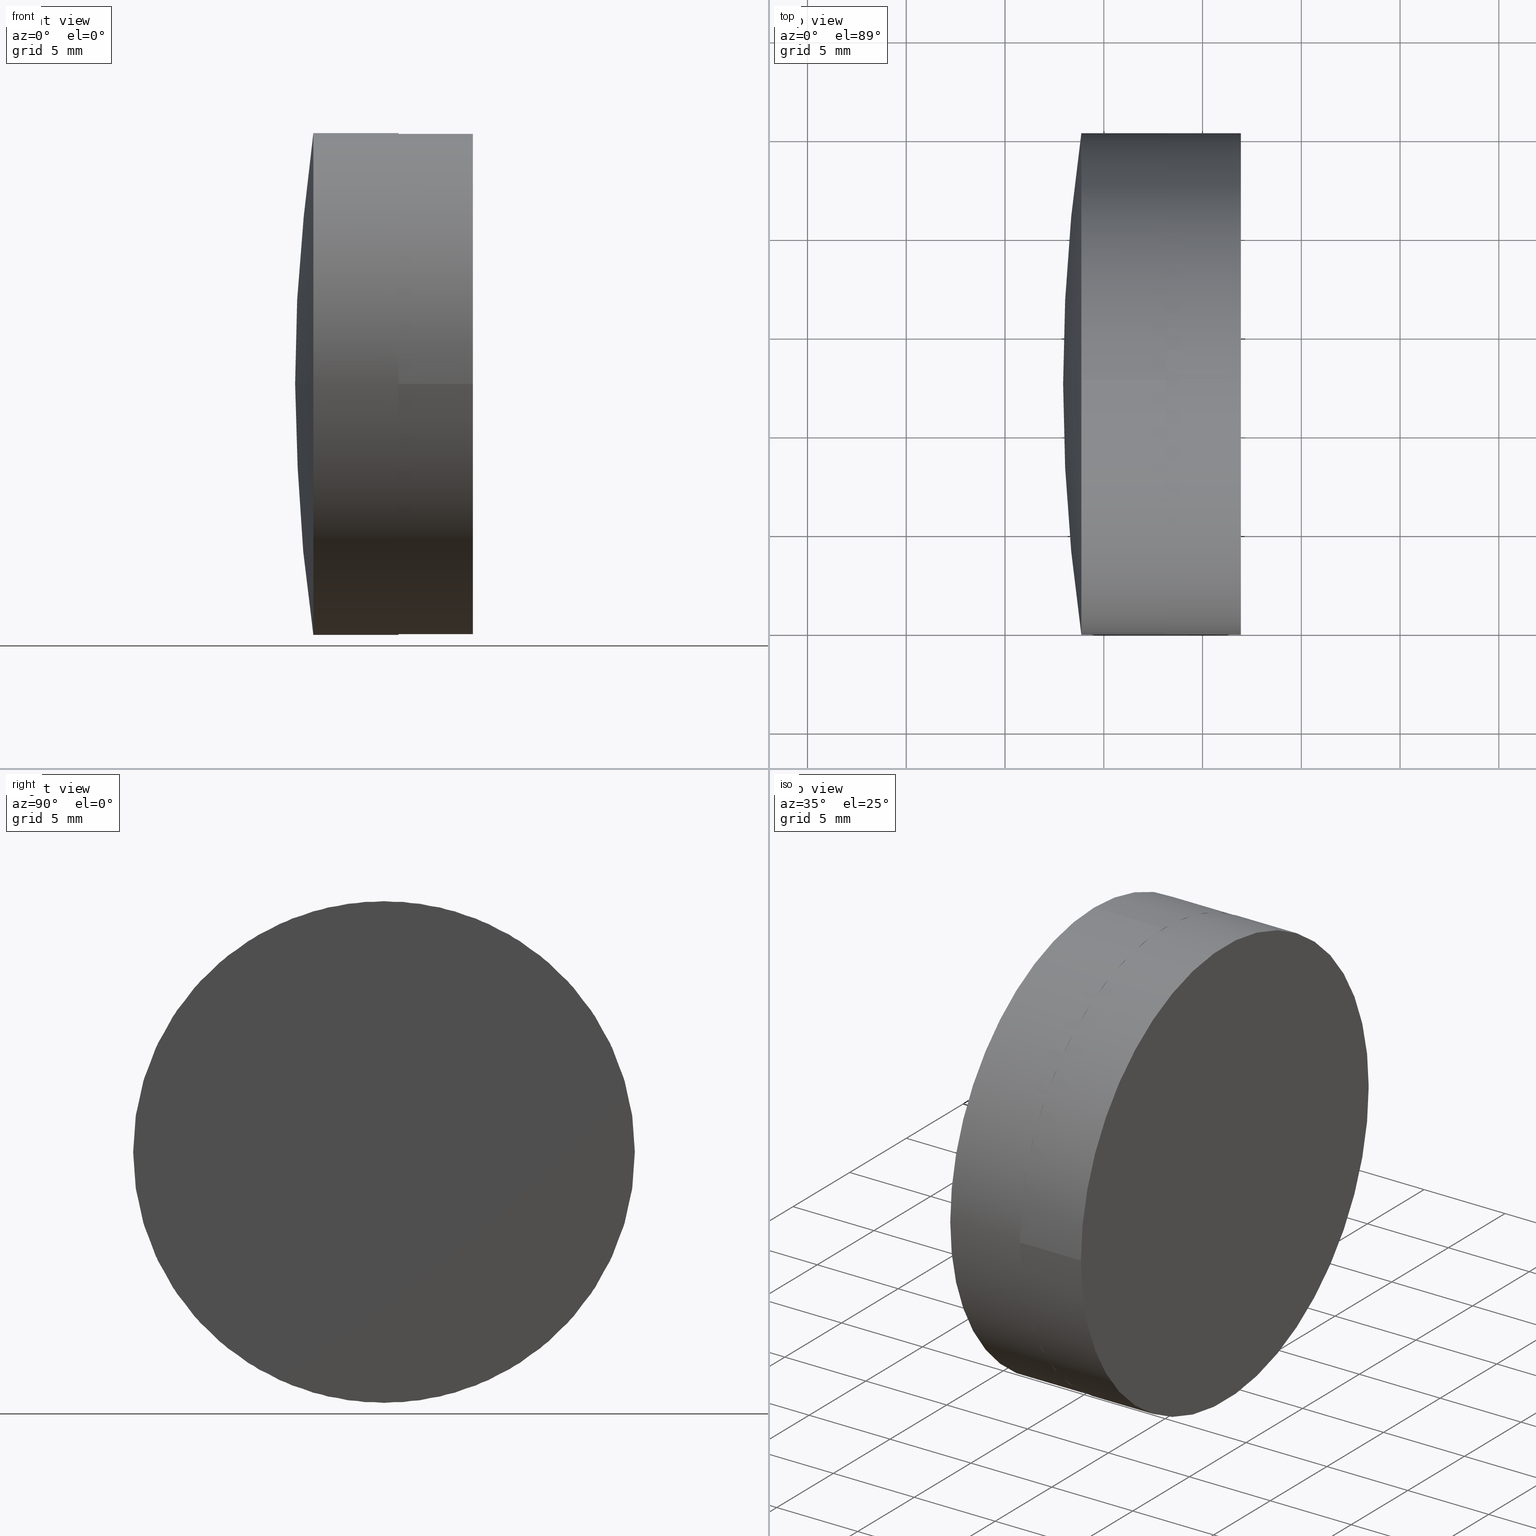
[diagram: canonical four-view strip — front | top / right | iso, engineering-drawing reading convention]
A machine part, canonical four-view strip (front | top / right | iso — engineering-drawing reading convention). The complete STEP part file that produces these views, byte-faithful:
ISO-10303-21;
HEADER;
FILE_DESCRIPTION (( 'STEP AP203' ),
    '1' );
FILE_NAME ('145279.STEP',
    '2024-05-11T09:28:15',
    ( '' ),
    ( '' ),
    'SwSTEP 2.0',
    'SolidWorks 2020',
    '' );
FILE_SCHEMA (( 'CONFIG_CONTROL_DESIGN' ));
ENDSEC;

DATA;
#1 = AXIS2_PLACEMENT_3D ( 'NONE', #187, #366, #335 ) ;
#2 = ORIENTED_EDGE ( 'NONE', *, *, #151, .T. ) ;
#3 = CARTESIAN_POINT ( 'NONE',  ( -36.13668689039688076, 32.49878037169512623, 0.000000000000000000 ) ) ;
#4 = AXIS2_PLACEMENT_3D ( 'NONE', #211, #178, #205 ) ;
#5 = ADVANCED_FACE ( 'NONE', ( #128 ), #250, .T. ) ;
#6 = EDGE_LOOP ( 'NONE', ( #7, #48, #64, #71 ) ) ;
#7 = ORIENTED_EDGE ( 'NONE', *, *, #271, .F. ) ;
#8 = DIRECTION ( 'NONE',  ( 0.000000000000000000, 1.000000000000000000, 0.000000000000000000 ) ) ;
#9 = EDGE_LOOP ( 'NONE', ( #358, #34, #210, #76 ) ) ;
#10 = VECTOR ( 'NONE', #369, 1000.000000000000000 ) ;
#11 = EDGE_LOOP ( 'NONE', ( #215, #376, #190 ) ) ;
#12 = DIRECTION ( 'NONE',  ( -1.499759782661856239E-32, 1.224646799147353207E-16, 1.000000000000000000 ) ) ;
#13 = ORIENTED_EDGE ( 'NONE', *, *, #186, .F. ) ;
#14 = LINE ( 'NONE', #303, #196 ) ;
#15 = DIRECTION ( 'NONE',  ( -1.000000000000000000, -0.000000000000000000, -0.000000000000000000 ) ) ;
#16 = DIRECTION ( 'NONE',  ( 1.000000000000000000, 1.224646799147351975E-16, -0.000000000000000000 ) ) ;
#17 = ORIENTED_EDGE ( 'NONE', *, *, #151, .F. ) ;
#18 = LOCAL_TIME ( 17, 28, 15.00000000000000000, #174 ) ;
#19 = APPROVAL_STATUS ( 'not_yet_approved' ) ;
#20 = CARTESIAN_POINT ( 'NONE',  ( -28.05941295107895428, 45.19878037169511487, 0.000000000000000000 ) ) ;
#21 = SPHERICAL_SURFACE ( 'NONE', #195, 87.85999999999999943 ) ;
#22 = DIRECTION ( 'NONE',  ( 0.000000000000000000, 0.000000000000000000, 1.000000000000000000 ) ) ;
#23 = CIRCLE ( 'NONE', #354, 12.69999999999999929 ) ;
#24 = CALENDAR_DATE ( 2024, 11, 5 ) ;
#25 = DIRECTION ( 'NONE',  ( 1.000000000000000000, 0.000000000000000000, 0.000000000000000000 ) ) ;
#26 = CARTESIAN_POINT ( 'NONE',  ( 0.000000000000000000, 0.000000000000000000, 0.000000000000000000 ) ) ;
#27 = EDGE_CURVE ( 'NONE', #126, #32, #132, .T. ) ;
#28 = CARTESIAN_POINT ( 'NONE',  ( -37.05941295107898981, 32.49878037169513334, 0.000000000000000000 ) ) ;
#29 = ORIENTED_EDGE ( 'NONE', *, *, #315, .F. ) ;
#30 = DIRECTION ( 'NONE',  ( 0.000000000000000000, 1.000000000000000000, 0.000000000000000000 ) ) ;
#31 = ADVANCED_FACE ( 'NONE', ( #161 ), #371, .T. ) ;
#32 = VERTEX_POINT ( 'NONE', #98 ) ;
#33 = DIRECTION ( 'NONE',  ( -1.000000000000000000, -0.000000000000000000, -0.000000000000000000 ) ) ;
#34 = ORIENTED_EDGE ( 'NONE', *, *, #89, .T. ) ;
#35 = AXIS2_PLACEMENT_3D ( 'NONE', #141, #231, #259 ) ;
#36 = DIRECTION ( 'NONE',  ( 0.000000000000000000, 0.000000000000000000, 1.000000000000000000 ) ) ;
#37 = VERTEX_POINT ( 'NONE', #20 ) ;
#38 = DIRECTION ( 'NONE',  ( 0.000000000000000000, 1.224646799147353207E-16, -1.000000000000000000 ) ) ;
#39 = ORIENTED_EDGE ( 'NONE', *, *, #44, .F. ) ;
#40 = ADVANCED_FACE ( 'NONE', ( #136 ), #130, .T. ) ;
#41 = FACE_OUTER_BOUND ( 'NONE', #332, .T. ) ;
#42 = AXIS2_PLACEMENT_3D ( 'NONE', #105, #227, #185 ) ;
#43 = VERTEX_POINT ( 'NONE', #275 ) ;
#44 = EDGE_CURVE ( 'NONE', #134, #212, #218, .T. ) ;
#45 = EDGE_LOOP ( 'NONE', ( #120, #241, #368, #364, #39, #96 ) ) ;
#46 = CARTESIAN_POINT ( 'NONE',  ( -28.05941295107897204, 45.19878037169512197, 0.000000000000000000 ) ) ;
#47 = PRODUCT_DEFINITION ( 'δ֪', '', #150, #308 ) ;
#48 = ORIENTED_EDGE ( 'NONE', *, *, #284, .T. ) ;
#49 = DIRECTION ( 'NONE',  ( 0.000000000000000000, -1.000000000000000000, 1.224646799147353207E-16 ) ) ;
#50 = CLOSED_SHELL ( 'NONE', ( #261, #59, #234, #125, #40, #85 ) ) ;
#51 = DIRECTION ( 'NONE',  ( -1.000000000000000000, -0.000000000000000000, -0.000000000000000000 ) ) ;
#52 = APPROVAL_PERSON_ORGANIZATION ( #111, #223, #253 ) ;
#53 = CARTESIAN_POINT ( 'NONE',  ( -31.82558590161919909, 32.49878037169512623, 12.69999999999999929 ) ) ;
#54 = CALENDAR_DATE ( 2024, 11, 5 ) ;
#55 = CARTESIAN_POINT ( 'NONE',  ( -136.6994129510789548, 32.49878037169512623, 0.000000000000000000 ) ) ;
#56 = CARTESIAN_POINT ( 'NONE',  ( -28.05941295107895428, 19.79878037169513405, 1.555301434917137841E-15 ) ) ;
#57 = AXIS2_PLACEMENT_3D ( 'NONE', #310, #15, #307 ) ;
#58 = APPROVAL_ROLE ( '' ) ;
#59 = ADVANCED_FACE ( 'NONE', ( #254 ), #377, .T. ) ;
#60 = DIRECTION ( 'NONE',  ( 1.000000000000000000, 1.224646799147351975E-16, -0.000000000000000000 ) ) ;
#61 = AXIS2_PLACEMENT_3D ( 'NONE', #372, #343, #312 ) ;
#62 = AXIS2_PLACEMENT_3D ( 'NONE', #340, #72, #68 ) ;
#63 = ADVANCED_FACE ( 'NONE', ( #74 ), #156, .F. ) ;
#64 = ORIENTED_EDGE ( 'NONE', *, *, #306, .T. ) ;
#65 = EDGE_LOOP ( 'NONE', ( #341, #92 ) ) ;
#66 = AXIS2_PLACEMENT_3D ( 'NONE', #359, #177, #363 ) ;
#67 = LOCAL_TIME ( 17, 28, 15.00000000000000000, #104 ) ;
#68 = DIRECTION ( 'NONE',  ( 0.000000000000000000, 1.000000000000000000, 0.000000000000000000 ) ) ;
#69 = ORIENTED_EDGE ( 'NONE', *, *, #208, .F. ) ;
#70 = CYLINDRICAL_SURFACE ( 'NONE', #78, 12.69999999999999929 ) ;
#71 = ORIENTED_EDGE ( 'NONE', *, *, #256, .F. ) ;
#72 = DIRECTION ( 'NONE',  ( 1.000000000000000000, 1.224646799147351975E-16, -0.000000000000000000 ) ) ;
#73 = AXIS2_PLACEMENT_3D ( 'NONE', #268, #181, #356 ) ;
#74 = FACE_OUTER_BOUND ( 'NONE', #11, .T. ) ;
#75 = ORIENTED_EDGE ( 'NONE', *, *, #179, .T. ) ;
#76 = ORIENTED_EDGE ( 'NONE', *, *, #349, .F. ) ;
#77 = APPROVAL_DATE_TIME ( #344, #223 ) ;
#78 = AXIS2_PLACEMENT_3D ( 'NONE', #99, #302, #243 ) ;
#79 = CARTESIAN_POINT ( 'NONE',  ( -37.05941295107898981, 32.49878037169512623, -12.69999999999999929 ) ) ;
#80 = SHAPE_DEFINITION_REPRESENTATION ( #224, #188 ) ;
#81 = DIRECTION ( 'NONE',  ( 0.000000000000000000, 0.000000000000000000, 1.000000000000000000 ) ) ;
#82 =( NAMED_UNIT ( * ) SI_UNIT ( $, .STERADIAN. ) SOLID_ANGLE_UNIT ( ) );
#83 = DIRECTION ( 'NONE',  ( -1.000000000000000000, -0.000000000000000000, -0.000000000000000000 ) ) ;
#84 = APPROVAL_DATE_TIME ( #316, #370 ) ;
#85 = ADVANCED_FACE ( 'NONE', ( #41 ), #199, .T. ) ;
#86 = CALENDAR_DATE ( 2024, 11, 5 ) ;
#87 = EDGE_CURVE ( 'NONE', #298, #272, #23, .T. ) ;
#88 = FACE_OUTER_BOUND ( 'NONE', #207, .T. ) ;
#89 = EDGE_CURVE ( 'NONE', #176, #103, #140, .T. ) ;
#90 = AXIS2_PLACEMENT_3D ( 'NONE', #251, #162, #8 ) ;
#91 = VERTEX_POINT ( 'NONE', #169 ) ;
#92 = ORIENTED_EDGE ( 'NONE', *, *, #256, .T. ) ;
#93 = MANIFOLD_SOLID_BREP ( '145279a-1-solid1', #50 ) ;
#94 = CIRCLE ( 'NONE', #163, 12.69999999999998863 ) ;
#95 = CARTESIAN_POINT ( 'NONE',  ( -136.6994129510789548, 32.49878037169512623, 0.000000000000000000 ) ) ;
#96 = ORIENTED_EDGE ( 'NONE', *, *, #149, .T. ) ;
#97 =( NAMED_UNIT ( * ) PLANE_ANGLE_UNIT ( ) SI_UNIT ( $, .RADIAN. ) );
#98 = CARTESIAN_POINT ( 'NONE',  ( -36.13668689039688076, 32.49878037169512623, -12.69999999999999929 ) ) ;
#99 = CARTESIAN_POINT ( 'NONE',  ( -37.05941295107898981, 32.49878037169512623, 0.000000000000000000 ) ) ;
#100 = AXIS2_PLACEMENT_3D ( 'NONE', #209, #38, #153 ) ;
#101 = DIRECTION ( 'NONE',  ( 1.000000000000000000, 1.224646799147351975E-16, -0.000000000000000000 ) ) ;
#102 = CARTESIAN_POINT ( 'NONE',  ( -31.82558590161919909, 32.49878037169512623, -12.69999999999999929 ) ) ;
#103 = VERTEX_POINT ( 'NONE', #172 ) ;
#104 = COORDINATED_UNIVERSAL_TIME_OFFSET ( 8, 0, .AHEAD. ) ;
#105 = CARTESIAN_POINT ( 'NONE',  ( -136.6994129510789548, 32.49878037169512623, 0.000000000000000000 ) ) ;
#106 = APPLICATION_PROTOCOL_DEFINITION ( 'international standard', 'config_control_design', 1994, #320 ) ;
#107 = CC_DESIGN_PERSON_AND_ORGANIZATION_ASSIGNMENT ( #319, #262, ( #150 ) ) ;
#108 = CARTESIAN_POINT ( 'NONE',  ( 50.80058704892100963, 32.49878037169512623, 0.000000000000000000 ) ) ;
#109 = CARTESIAN_POINT ( 'NONE',  ( -136.6994129510789548, 32.49878037169512623, 0.000000000000000000 ) ) ;
#110 = EDGE_CURVE ( 'NONE', #298, #32, #286, .T. ) ;
#111 = PERSON_AND_ORGANIZATION ( #258, #296 ) ;
#112 = PERSON_AND_ORGANIZATION_ROLE ( 'design_owner' ) ;
#113 = CIRCLE ( 'NONE', #100, 105.6399999999999864 ) ;
#114 = CC_DESIGN_APPROVAL ( #223, ( #361 ) ) ;
#115 = EDGE_LOOP ( 'NONE', ( #334, #214, #2, #283 ) ) ;
#116 = ORIENTED_EDGE ( 'NONE', *, *, #263, .F. ) ;
#117 = CIRCLE ( 'NONE', #73, 87.85999999999999943 ) ;
#118 = AXIS2_PLACEMENT_3D ( 'NONE', #95, #12, #49 ) ;
#119 = SPHERICAL_SURFACE ( 'NONE', #66, 87.85999999999999943 ) ;
#120 = ORIENTED_EDGE ( 'NONE', *, *, #208, .T. ) ;
#121 = EDGE_LOOP ( 'NONE', ( #242, #338, #159 ) ) ;
#122 = CIRCLE ( 'NONE', #175, 105.6400000000000148 ) ;
#123 = DIRECTION ( 'NONE',  ( 1.000000000000000000, 1.224646799147351975E-16, -0.000000000000000000 ) ) ;
#124 = CC_DESIGN_APPROVAL ( #370, ( #47 ) ) ;
#125 = ADVANCED_FACE ( 'NONE', ( #257 ), #21, .T. ) ;
#126 = VERTEX_POINT ( 'NONE', #314 ) ;
#127 = DIRECTION ( 'NONE',  ( -1.000000000000000000, -0.000000000000000000, -0.000000000000000000 ) ) ;
#128 = FACE_OUTER_BOUND ( 'NONE', #6, .T. ) ;
#129 = FACE_OUTER_BOUND ( 'NONE', #121, .T. ) ;
#130 = SPHERICAL_SURFACE ( 'NONE', #61, 105.6399999999999864 ) ;
#131 = SPHERICAL_SURFACE ( 'NONE', #90, 105.6400000000000006 ) ;
#132 = CIRCLE ( 'NONE', #57, 12.69999999999999929 ) ;
#133 = CIRCLE ( 'NONE', #142, 12.69999999999998863 ) ;
#134 = VERTEX_POINT ( 'NONE', #53 ) ;
#135 = DATE_AND_TIME ( #86, #236 ) ;
#136 = FACE_OUTER_BOUND ( 'NONE', #9, .T. ) ;
#137 = PERSON_AND_ORGANIZATION ( #258, #296 ) ;
#138 = PRODUCT_RELATED_PRODUCT_CATEGORY ( 'detail', '', ( #318 ) ) ;
#139 = DIRECTION ( 'NONE',  ( 0.000000000000000000, 0.000000000000000000, 1.000000000000000000 ) ) ;
#140 = CIRCLE ( 'NONE', #273, 105.6399999999999864 ) ;
#141 = CARTESIAN_POINT ( 'NONE',  ( 50.80058704892100963, 32.49878037169512623, 0.000000000000000000 ) ) ;
#142 = AXIS2_PLACEMENT_3D ( 'NONE', #278, #16, #311 ) ;
#143 = DATE_TIME_ROLE ( 'classification_date' ) ;
#144 = CC_DESIGN_PERSON_AND_ORGANIZATION_ASSIGNMENT ( #137, #112, ( #318 ) ) ;
#145 = PERSON_AND_ORGANIZATION ( #258, #296 ) ;
#146 = CIRCLE ( 'NONE', #35, 87.85999999999999943 ) ;
#147 = CARTESIAN_POINT ( 'NONE',  ( -28.05941295107895428, 32.49878037169512623, 0.000000000000000000 ) ) ;
#148 = VERTEX_POINT ( 'NONE', #56 ) ;
#149 = EDGE_CURVE ( 'NONE', #134, #103, #240, .T. ) ;
#150 = PRODUCT_DEFINITION_FORMATION_WITH_SPECIFIED_SOURCE ( '�κ�', '', #318, .NOT_KNOWN. ) ;
#151 = EDGE_CURVE ( 'NONE', #301, #252, #146, .T. ) ;
#152 = ORIENTED_EDGE ( 'NONE', *, *, #226, .T. ) ;
#153 = DIRECTION ( 'NONE',  ( 0.000000000000000000, 1.000000000000000000, 1.224646799147353207E-16 ) ) ;
#154 = ORIENTED_EDGE ( 'NONE', *, *, #110, .F. ) ;
#155 = DIRECTION ( 'NONE',  ( 1.000000000000000000, 1.224646799147351975E-16, -0.000000000000000000 ) ) ;
#156 = SPHERICAL_SURFACE ( 'NONE', #280, 105.6400000000000006 ) ;
#157 = VECTOR ( 'NONE', #51, 1000.000000000000000 ) ;
#158 = CC_DESIGN_PERSON_AND_ORGANIZATION_ASSIGNMENT ( #260, #313, ( #47 ) ) ;
#159 = ORIENTED_EDGE ( 'NONE', *, *, #269, .F. ) ;
#160 = DIRECTION ( 'NONE',  ( 0.000000000000000000, 0.000000000000000000, 1.000000000000000000 ) ) ;
#161 = FACE_OUTER_BOUND ( 'NONE', #65, .T. ) ;
#162 = DIRECTION ( 'NONE',  ( 0.000000000000000000, -0.000000000000000000, 1.000000000000000000 ) ) ;
#163 = AXIS2_PLACEMENT_3D ( 'NONE', #147, #357, #30 ) ;
#164 = CIRCLE ( 'NONE', #118, 105.6400000000000006 ) ;
#165 = ORIENTED_EDGE ( 'NONE', *, *, #89, .F. ) ;
#166 = APPROVAL_STATUS ( 'not_yet_approved' ) ;
#167 = DIRECTION ( 'NONE',  ( -1.000000000000000000, -0.000000000000000000, -0.000000000000000000 ) ) ;
#168 = PERSON_AND_ORGANIZATION ( #258, #296 ) ;
#169 = CARTESIAN_POINT ( 'NONE',  ( -31.82558590161918488, 19.79878037169516958, 1.555301434917134686E-15 ) ) ;
#170 = COORDINATED_UNIVERSAL_TIME_OFFSET ( 8, 0, .AHEAD. ) ;
#171 = AXIS2_PLACEMENT_3D ( 'NONE', #374, #101, #191 ) ;
#172 = CARTESIAN_POINT ( 'NONE',  ( -31.82558590161920620, 45.19878037169512197, 0.000000000000000000 ) ) ;
#173 = AXIS2_PLACEMENT_3D ( 'NONE', #220, #127, #160 ) ;
#174 = COORDINATED_UNIVERSAL_TIME_OFFSET ( 8, 0, .AHEAD. ) ;
#175 = AXIS2_PLACEMENT_3D ( 'NONE', #333, #222, #342 ) ;
#176 = VERTEX_POINT ( 'NONE', #351 ) ;
#177 = DIRECTION ( 'NONE',  ( -0.000000000000000000, 0.000000000000000000, -1.000000000000000000 ) ) ;
#178 = DIRECTION ( 'NONE',  ( -1.000000000000000000, -0.000000000000000000, -0.000000000000000000 ) ) ;
#179 = EDGE_CURVE ( 'NONE', #126, #252, #117, .T. ) ;
#180 = ORIENTED_EDGE ( 'NONE', *, *, #237, .T. ) ;
#181 = DIRECTION ( 'NONE',  ( -0.000000000000000000, 0.000000000000000000, 1.000000000000000000 ) ) ;
#182 = CIRCLE ( 'NONE', #4, 12.69999999999999929 ) ;
#183 = LOCAL_TIME ( 17, 28, 15.00000000000000000, #350 ) ;
#184 = DIRECTION ( 'NONE',  ( -1.000000000000000000, -0.000000000000000000, -0.000000000000000000 ) ) ;
#185 = DIRECTION ( 'NONE',  ( 0.000000000000000000, 1.000000000000000000, 0.000000000000000000 ) ) ;
#186 = EDGE_CURVE ( 'NONE', #301, #212, #289, .T. ) ;
#187 = CARTESIAN_POINT ( 'NONE',  ( -36.13668689039688076, 32.49878037169512623, 0.000000000000000000 ) ) ;
#188 = ADVANCED_BREP_SHAPE_REPRESENTATION ( '145279', ( #353, #93, #246 ), #355 ) ;
#189 = EDGE_LOOP ( 'NONE', ( #17, #277, #152, #75 ) ) ;
#190 = ORIENTED_EDGE ( 'NONE', *, *, #269, .T. ) ;
#191 = DIRECTION ( 'NONE',  ( 0.000000000000000000, 1.000000000000000000, 0.000000000000000000 ) ) ;
#192 = LINE ( 'NONE', #46, #10 ) ;
#193 = CC_DESIGN_DATE_AND_TIME_ASSIGNMENT ( #322, #228, ( #47 ) ) ;
#194 = CARTESIAN_POINT ( 'NONE',  ( -28.05941295107896494, 45.19878037169511487, 0.000000000000000000 ) ) ;
#195 = AXIS2_PLACEMENT_3D ( 'NONE', #108, #229, #197 ) ;
#196 = VECTOR ( 'NONE', #155, 1000.000000000000000 ) ;
#197 = DIRECTION ( 'NONE',  ( 0.000000000000000000, 1.000000000000000000, 0.000000000000000000 ) ) ;
#198 = ADVANCED_FACE ( 'NONE', ( #88 ), #325, .T. ) ;
#199 = CYLINDRICAL_SURFACE ( 'NONE', #339, 12.69999999999999929 ) ;
#200 = DIRECTION ( 'NONE',  ( -1.000000000000000000, -0.000000000000000000, -0.000000000000000000 ) ) ;
#201 = APPROVAL_DATE_TIME ( #135, #323 ) ;
#202 = SECURITY_CLASSIFICATION_LEVEL ( 'unclassified' ) ;
#203 = CARTESIAN_POINT ( 'NONE',  ( -36.13668689039688076, 32.49878037169512623, 0.000000000000000000 ) ) ;
#204 = CC_DESIGN_PERSON_AND_ORGANIZATION_ASSIGNMENT ( #168, #324, ( #361 ) ) ;
#205 = DIRECTION ( 'NONE',  ( 0.000000000000000000, 0.000000000000000000, 1.000000000000000000 ) ) ;
#206 = CLOSED_SHELL ( 'NONE', ( #198, #375, #63, #5, #31 ) ) ;
#207 = EDGE_LOOP ( 'NONE', ( #267, #265, #29, #362 ) ) ;
#208 = EDGE_CURVE ( 'NONE', #103, #298, #182, .T. ) ;
#209 = CARTESIAN_POINT ( 'NONE',  ( -136.6994129510789548, 32.49878037169512623, 0.000000000000000000 ) ) ;
#210 = ORIENTED_EDGE ( 'NONE', *, *, #149, .F. ) ;
#211 = CARTESIAN_POINT ( 'NONE',  ( -31.82558590161919909, 32.49878037169512623, 0.000000000000000000 ) ) ;
#212 = VERTEX_POINT ( 'NONE', #300 ) ;
#213 = CIRCLE ( 'NONE', #62, 12.70000000000000284 ) ;
#214 = ORIENTED_EDGE ( 'NONE', *, *, #263, .T. ) ;
#215 = ORIENTED_EDGE ( 'NONE', *, *, #328, .F. ) ;
#216 = CARTESIAN_POINT ( 'NONE',  ( -31.82558590161919909, 32.49878037169512623, 0.000000000000000000 ) ) ;
#217 = APPLICATION_CONTEXT ( 'configuration controlled 3d designs of mechanical parts and assemblies' ) ;
#218 = LINE ( 'NONE', #249, #157 ) ;
#219 = CIRCLE ( 'NONE', #330, 12.69999999999999929 ) ;
#220 = CARTESIAN_POINT ( 'NONE',  ( -31.82558590161919909, 32.49878037169512623, 0.000000000000000000 ) ) ;
#221 = ORIENTED_EDGE ( 'NONE', *, *, #349, .T. ) ;
#222 = DIRECTION ( 'NONE',  ( -0.000000000000000000, 0.000000000000000000, -1.000000000000000000 ) ) ;
#223 = APPROVAL ( #255, 'δָ��' ) ;
#224 = PRODUCT_DEFINITION_SHAPE ( 'NONE', 'NONE',  #47 ) ;
#225 = MECHANICAL_CONTEXT ( 'NONE', #217, 'mechanical' ) ;
#226 = EDGE_CURVE ( 'NONE', #212, #126, #219, .T. ) ;
#227 = DIRECTION ( 'NONE',  ( -0.000000000000000000, 0.000000000000000000, -1.000000000000000000 ) ) ;
#228 = DATE_TIME_ROLE ( 'creation_date' ) ;
#229 = DIRECTION ( 'NONE',  ( -0.000000000000000000, 0.000000000000000000, -1.000000000000000000 ) ) ;
#230 = APPROVAL_ROLE ( '' ) ;
#231 = DIRECTION ( 'NONE',  ( 0.000000000000000000, 1.224646799147353207E-16, -1.000000000000000000 ) ) ;
#232 = DIRECTION ( 'NONE',  ( 1.000000000000000000, 0.000000000000000000, 0.000000000000000000 ) ) ;
#233 = CALENDAR_DATE ( 2024, 11, 5 ) ;
#234 = ADVANCED_FACE ( 'NONE', ( #294 ), #119, .T. ) ;
#235 = AXIS2_PLACEMENT_3D ( 'NONE', #327, #60, #365 ) ;
#236 = LOCAL_TIME ( 17, 28, 15.00000000000000000, #170 ) ;
#237 = EDGE_CURVE ( 'NONE', #176, #272, #113, .T. ) ;
#238 = ORIENTED_EDGE ( 'NONE', *, *, #44, .T. ) ;
#239 = DIRECTION ( 'NONE',  ( 0.000000000000000000, 0.000000000000000000, 1.000000000000000000 ) ) ;
#240 = CIRCLE ( 'NONE', #264, 12.69999999999999929 ) ;
#241 = ORIENTED_EDGE ( 'NONE', *, *, #110, .T. ) ;
#242 = ORIENTED_EDGE ( 'NONE', *, *, #284, .F. ) ;
#243 = DIRECTION ( 'NONE',  ( 0.000000000000000000, 0.000000000000000000, 1.000000000000000000 ) ) ;
#244 = VERTEX_POINT ( 'NONE', #270 ) ;
#245 = AXIS2_PLACEMENT_3D ( 'NONE', #3, #184, #36 ) ;
#246 = AXIS2_PLACEMENT_3D ( 'NONE', #26, #381, #232 ) ;
#247 =( LENGTH_UNIT ( ) NAMED_UNIT ( * ) SI_UNIT ( .MILLI., .METRE. ) );
#248 = DIRECTION ( 'NONE',  ( 1.000000000000000000, 1.224646799147351975E-16, -0.000000000000000000 ) ) ;
#249 = CARTESIAN_POINT ( 'NONE',  ( -37.05941295107898981, 32.49878037169512623, 12.69999999999999929 ) ) ;
#250 = CYLINDRICAL_SURFACE ( 'NONE', #171, 12.69999999999999574 ) ;
#251 = CARTESIAN_POINT ( 'NONE',  ( -136.6994129510789548, 32.49878037169512623, 0.000000000000000000 ) ) ;
#252 = VERTEX_POINT ( 'NONE', #28 ) ;
#253 = APPROVAL_ROLE ( '' ) ;
#254 = FACE_OUTER_BOUND ( 'NONE', #304, .T. ) ;
#255 = APPROVAL_STATUS ( 'not_yet_approved' ) ;
#256 = EDGE_CURVE ( 'NONE', #148, #37, #94, .T. ) ;
#257 = FACE_OUTER_BOUND ( 'NONE', #189, .T. ) ;
#258 = PERSON ( 'δָ��', 'δָ��', 'δָ��', ('δָ��'), ('δָ��'), ('δָ��') ) ;
#259 = DIRECTION ( 'NONE',  ( 0.000000000000000000, 1.000000000000000000, 1.224646799147353207E-16 ) ) ;
#260 = PERSON_AND_ORGANIZATION ( #258, #296 ) ;
#261 = ADVANCED_FACE ( 'NONE', ( #266 ), #70, .T. ) ;
#262 = PERSON_AND_ORGANIZATION_ROLE ( 'creator' ) ;
#263 = EDGE_CURVE ( 'NONE', #32, #301, #295, .T. ) ;
#264 = AXIS2_PLACEMENT_3D ( 'NONE', #348, #167, #22 ) ;
#265 = ORIENTED_EDGE ( 'NONE', *, *, #271, .T. ) ;
#266 = FACE_OUTER_BOUND ( 'NONE', #45, .T. ) ;
#267 = ORIENTED_EDGE ( 'NONE', *, *, #299, .T. ) ;
#268 = CARTESIAN_POINT ( 'NONE',  ( 50.80058704892100963, 32.49878037169512623, 0.000000000000000000 ) ) ;
#269 = EDGE_CURVE ( 'NONE', #43, #244, #122, .T. ) ;
#270 = CARTESIAN_POINT ( 'NONE',  ( -31.05941295107896138, 32.49878037169514755, 0.000000000000000000 ) ) ;
#271 = EDGE_CURVE ( 'NONE', #91, #148, #14, .T. ) ;
#272 = VERTEX_POINT ( 'NONE', #373 ) ;
#273 = AXIS2_PLACEMENT_3D ( 'NONE', #55, #378, #25 ) ;
#274 = AXIS2_PLACEMENT_3D ( 'NONE', #216, #123, #337 ) ;
#275 = CARTESIAN_POINT ( 'NONE',  ( -31.82558590161918488, 45.19878037169509355, 0.000000000000000000 ) ) ;
#276 = UNCERTAINTY_MEASURE_WITH_UNIT (LENGTH_MEASURE( 1.000000000000000082E-05 ), #247, 'distance_accuracy_value', 'NONE');
#277 = ORIENTED_EDGE ( 'NONE', *, *, #186, .T. ) ;
#278 = CARTESIAN_POINT ( 'NONE',  ( -28.05941295107895428, 32.49878037169512623, 0.000000000000000000 ) ) ;
#279 = DIRECTION ( 'NONE',  ( -1.224646799147351975E-16, 1.000000000000000000, 0.000000000000000000 ) ) ;
#280 = AXIS2_PLACEMENT_3D ( 'NONE', #109, #317, #287 ) ;
#281 = CIRCLE ( 'NONE', #274, 12.70000000000000284 ) ;
#282 = PERSON_AND_ORGANIZATION ( #258, #296 ) ;
#283 = ORIENTED_EDGE ( 'NONE', *, *, #179, .F. ) ;
#284 = EDGE_CURVE ( 'NONE', #91, #43, #281, .T. ) ;
#285 = DATE_AND_TIME ( #24, #346 ) ;
#286 = LINE ( 'NONE', #79, #360 ) ;
#287 = DIRECTION ( 'NONE',  ( 0.000000000000000000, 1.000000000000000000, 0.000000000000000000 ) ) ;
#288 = COORDINATED_UNIVERSAL_TIME_OFFSET ( 8, 0, .AHEAD. ) ;
#289 = CIRCLE ( 'NONE', #245, 12.69999999999999929 ) ;
#290 = CIRCLE ( 'NONE', #173, 12.69999999999999929 ) ;
#291 = CARTESIAN_POINT ( 'NONE',  ( -37.05941295107898981, 32.49878037169512623, 0.000000000000000000 ) ) ;
#292 = APPLICATION_PROTOCOL_DEFINITION ( 'international standard', 'config_control_design', 1994, #217 ) ;
#293 = CC_DESIGN_PERSON_AND_ORGANIZATION_ASSIGNMENT ( #352, #380, ( #150 ) ) ;
#294 = FACE_OUTER_BOUND ( 'NONE', #115, .T. ) ;
#295 = CIRCLE ( 'NONE', #1, 12.69999999999999929 ) ;
#296 = ORGANIZATION ( 'δָ��', 'δָ��', '' ) ;
#297 = CC_DESIGN_DATE_AND_TIME_ASSIGNMENT ( #285, #143, ( #361 ) ) ;
#298 = VERTEX_POINT ( 'NONE', #102 ) ;
#299 = EDGE_CURVE ( 'NONE', #43, #91, #213, .T. ) ;
#300 = CARTESIAN_POINT ( 'NONE',  ( -36.13668689039688076, 32.49878037169512623, 12.69999999999999929 ) ) ;
#301 = VERTEX_POINT ( 'NONE', #309 ) ;
#302 = DIRECTION ( 'NONE',  ( -1.000000000000000000, -0.000000000000000000, -0.000000000000000000 ) ) ;
#303 = CARTESIAN_POINT ( 'NONE',  ( -28.05941295107897204, 19.79878037169512695, 1.555301434917138038E-15 ) ) ;
#304 = EDGE_LOOP ( 'NONE', ( #165, #180, #329, #69 ) ) ;
#305 = APPROVAL_PERSON_ORGANIZATION ( #145, #370, #230 ) ;
#306 = EDGE_CURVE ( 'NONE', #43, #37, #192, .T. ) ;
#307 = DIRECTION ( 'NONE',  ( 0.000000000000000000, 0.000000000000000000, 1.000000000000000000 ) ) ;
#308 = DESIGN_CONTEXT ( 'detailed design', #320, 'design' ) ;
#309 = CARTESIAN_POINT ( 'NONE',  ( -36.13668689039688076, 19.79878037169516247, -1.555301434917133699E-15 ) ) ;
#310 = CARTESIAN_POINT ( 'NONE',  ( -36.13668689039688076, 32.49878037169512623, 0.000000000000000000 ) ) ;
#311 = DIRECTION ( 'NONE',  ( 0.000000000000000000, 1.000000000000000000, 0.000000000000000000 ) ) ;
#312 = DIRECTION ( 'NONE',  ( 0.000000000000000000, 1.000000000000000000, 0.000000000000000000 ) ) ;
#313 = PERSON_AND_ORGANIZATION_ROLE ( 'creator' ) ;
#314 = CARTESIAN_POINT ( 'NONE',  ( -36.13668689039688076, 45.19878037169508644, 0.000000000000000000 ) ) ;
#315 = EDGE_CURVE ( 'NONE', #37, #148, #133, .T. ) ;
#316 = DATE_AND_TIME ( #54, #18 ) ;
#317 = DIRECTION ( 'NONE',  ( 0.000000000000000000, -0.000000000000000000, 1.000000000000000000 ) ) ;
#318 = PRODUCT ( '145279', '145279', '', ( #225 ) ) ;
#319 = PERSON_AND_ORGANIZATION ( #258, #296 ) ;
#320 = APPLICATION_CONTEXT ( 'configuration controlled 3d designs of mechanical parts and assemblies' ) ;
#321 = DIRECTION ( 'NONE',  ( -1.000000000000000000, -0.000000000000000000, -0.000000000000000000 ) ) ;
#322 = DATE_AND_TIME ( #233, #183 ) ;
#323 = APPROVAL ( #19, 'δָ��' ) ;
#324 = PERSON_AND_ORGANIZATION_ROLE ( 'classification_officer' ) ;
#325 = CYLINDRICAL_SURFACE ( 'NONE', #235, 12.69999999999999574 ) ;
#326 = AXIS2_PLACEMENT_3D ( 'NONE', #194, #248, #279 ) ;
#327 = CARTESIAN_POINT ( 'NONE',  ( -28.05941295107897204, 32.49878037169512623, 0.000000000000000000 ) ) ;
#328 = EDGE_CURVE ( 'NONE', #91, #244, #164, .T. ) ;
#329 = ORIENTED_EDGE ( 'NONE', *, *, #87, .F. ) ;
#330 = AXIS2_PLACEMENT_3D ( 'NONE', #203, #33, #239 ) ;
#331 = CC_DESIGN_SECURITY_CLASSIFICATION ( #361, ( #150 ) ) ;
#332 = EDGE_LOOP ( 'NONE', ( #154, #336, #221, #238, #13, #116 ) ) ;
#333 = CARTESIAN_POINT ( 'NONE',  ( -136.6994129510789548, 32.49878037169512623, 0.000000000000000000 ) ) ;
#334 = ORIENTED_EDGE ( 'NONE', *, *, #27, .T. ) ;
#335 = DIRECTION ( 'NONE',  ( 0.000000000000000000, 0.000000000000000000, 1.000000000000000000 ) ) ;
#336 = ORIENTED_EDGE ( 'NONE', *, *, #87, .T. ) ;
#337 = DIRECTION ( 'NONE',  ( 0.000000000000000000, 1.000000000000000000, 0.000000000000000000 ) ) ;
#338 = ORIENTED_EDGE ( 'NONE', *, *, #328, .T. ) ;
#339 = AXIS2_PLACEMENT_3D ( 'NONE', #291, #200, #81 ) ;
#340 = CARTESIAN_POINT ( 'NONE',  ( -31.82558590161919909, 32.49878037169512623, 0.000000000000000000 ) ) ;
#341 = ORIENTED_EDGE ( 'NONE', *, *, #315, .T. ) ;
#342 = DIRECTION ( 'NONE',  ( -1.000000000000000000, 0.000000000000000000, 0.000000000000000000 ) ) ;
#343 = DIRECTION ( 'NONE',  ( -0.000000000000000000, 0.000000000000000000, -1.000000000000000000 ) ) ;
#344 = DATE_AND_TIME ( #347, #67 ) ;
#345 = CARTESIAN_POINT ( 'NONE',  ( -31.82558590161919909, 32.49878037169512623, 0.000000000000000000 ) ) ;
#346 = LOCAL_TIME ( 17, 28, 15.00000000000000000, #288 ) ;
#347 = CALENDAR_DATE ( 2024, 11, 5 ) ;
#348 = CARTESIAN_POINT ( 'NONE',  ( -31.82558590161919909, 32.49878037169512623, 0.000000000000000000 ) ) ;
#349 = EDGE_CURVE ( 'NONE', #272, #134, #290, .T. ) ;
#350 = COORDINATED_UNIVERSAL_TIME_OFFSET ( 8, 0, .AHEAD. ) ;
#351 = CARTESIAN_POINT ( 'NONE',  ( -31.05941295107897560, 32.49878037169513334, 0.000000000000000000 ) ) ;
#352 = PERSON_AND_ORGANIZATION ( #258, #296 ) ;
#353 = MANIFOLD_SOLID_BREP ( '145279b-1-solid1', #206 ) ;
#354 = AXIS2_PLACEMENT_3D ( 'NONE', #345, #83, #139 ) ;
#355 =( GEOMETRIC_REPRESENTATION_CONTEXT ( 3 ) GLOBAL_UNCERTAINTY_ASSIGNED_CONTEXT ( ( #276 ) ) GLOBAL_UNIT_ASSIGNED_CONTEXT ( ( #247, #97, #82 ) ) REPRESENTATION_CONTEXT ( 'NONE', 'WORKASPACE' ) );
#356 = DIRECTION ( 'NONE',  ( 1.000000000000000000, 0.000000000000000000, 0.000000000000000000 ) ) ;
#357 = DIRECTION ( 'NONE',  ( 1.000000000000000000, 1.224646799147351975E-16, -0.000000000000000000 ) ) ;
#358 = ORIENTED_EDGE ( 'NONE', *, *, #237, .F. ) ;
#359 = CARTESIAN_POINT ( 'NONE',  ( 50.80058704892100963, 32.49878037169512623, 0.000000000000000000 ) ) ;
#360 = VECTOR ( 'NONE', #321, 1000.000000000000000 ) ;
#361 = SECURITY_CLASSIFICATION ( '', '', #202 ) ;
#362 = ORIENTED_EDGE ( 'NONE', *, *, #306, .F. ) ;
#363 = DIRECTION ( 'NONE',  ( 0.000000000000000000, 1.000000000000000000, 0.000000000000000000 ) ) ;
#364 = ORIENTED_EDGE ( 'NONE', *, *, #226, .F. ) ;
#365 = DIRECTION ( 'NONE',  ( 0.000000000000000000, 1.000000000000000000, 0.000000000000000000 ) ) ;
#366 = DIRECTION ( 'NONE',  ( -1.000000000000000000, -0.000000000000000000, -0.000000000000000000 ) ) ;
#367 = APPROVAL_PERSON_ORGANIZATION ( #282, #323, #58 ) ;
#368 = ORIENTED_EDGE ( 'NONE', *, *, #27, .F. ) ;
#369 = DIRECTION ( 'NONE',  ( 1.000000000000000000, 1.224646799147351975E-16, -0.000000000000000000 ) ) ;
#370 = APPROVAL ( #166, 'δָ��' ) ;
#371 = PLANE ( 'NONE',  #326 ) ;
#372 = CARTESIAN_POINT ( 'NONE',  ( -136.6994129510789548, 32.49878037169512623, 0.000000000000000000 ) ) ;
#373 = CARTESIAN_POINT ( 'NONE',  ( -31.82558590161920620, 19.79878037169513050, -1.555301434917137841E-15 ) ) ;
#374 = CARTESIAN_POINT ( 'NONE',  ( -28.05941295107897204, 32.49878037169512623, 0.000000000000000000 ) ) ;
#375 = ADVANCED_FACE ( 'NONE', ( #129 ), #131, .F. ) ;
#376 = ORIENTED_EDGE ( 'NONE', *, *, #299, .F. ) ;
#377 = SPHERICAL_SURFACE ( 'NONE', #42, 105.6399999999999864 ) ;
#378 = DIRECTION ( 'NONE',  ( -0.000000000000000000, 0.000000000000000000, 1.000000000000000000 ) ) ;
#379 = CC_DESIGN_APPROVAL ( #323, ( #150 ) ) ;
#380 = PERSON_AND_ORGANIZATION_ROLE ( 'design_supplier' ) ;
#381 = DIRECTION ( 'NONE',  ( 0.000000000000000000, 0.000000000000000000, 1.000000000000000000 ) ) ;
ENDSEC;
END-ISO-10303-21;
